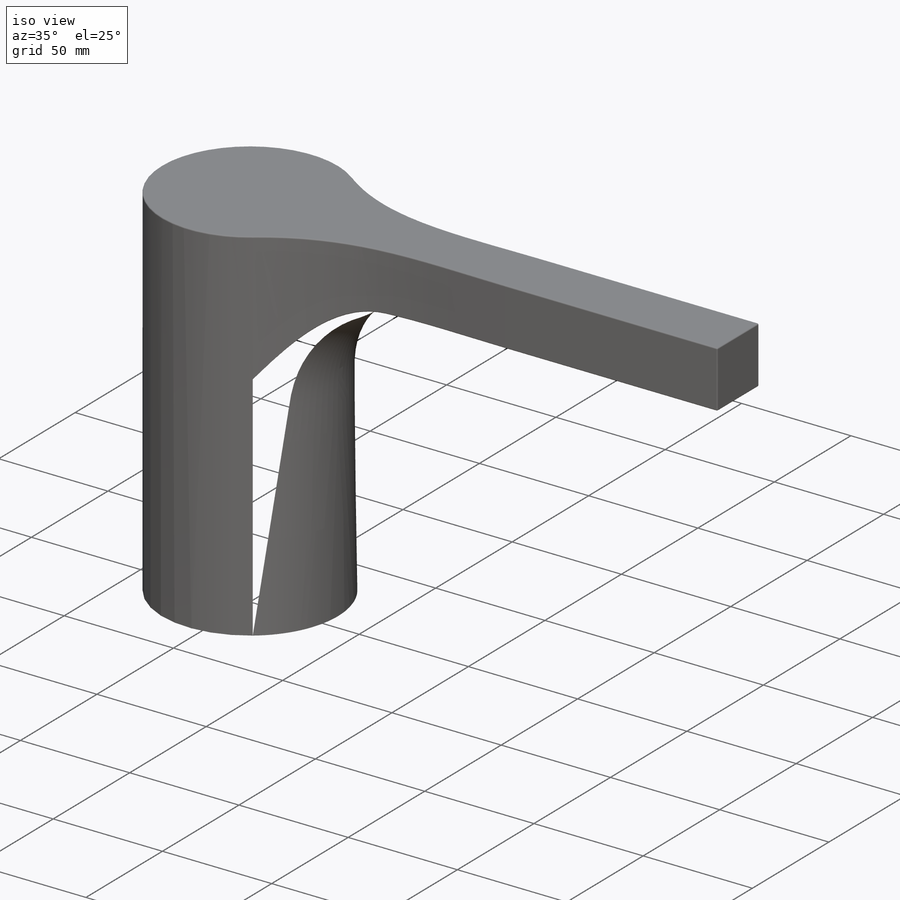
[diagram: iso view]
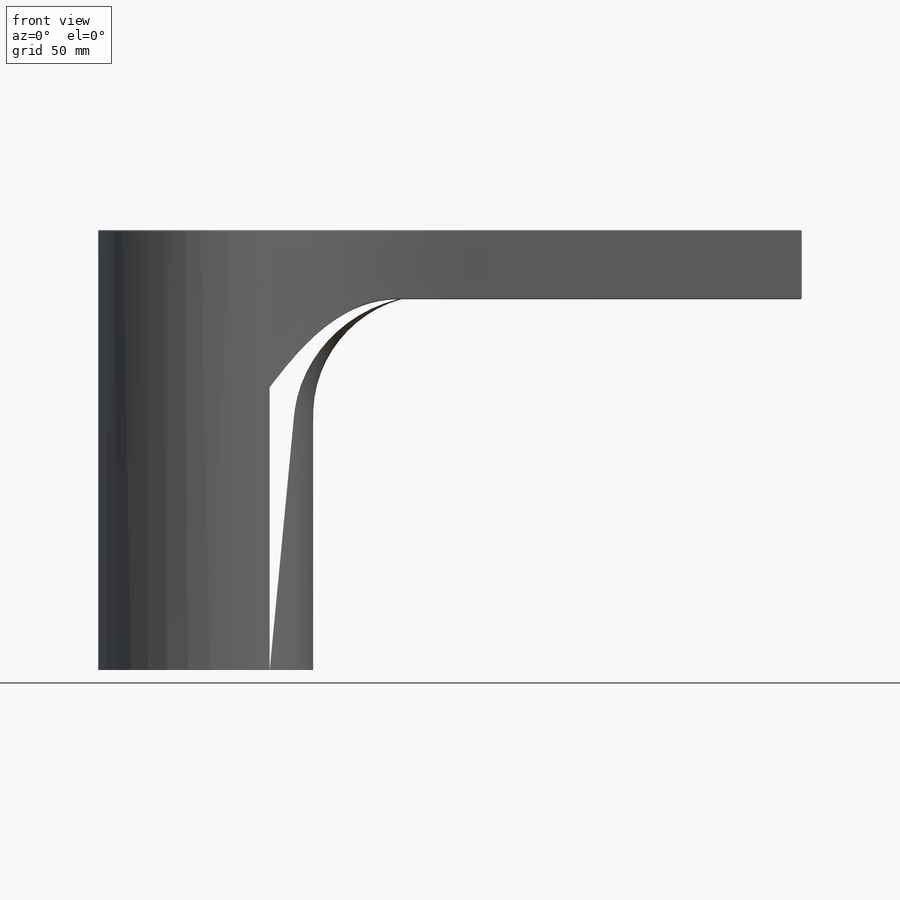
[diagram: front view]
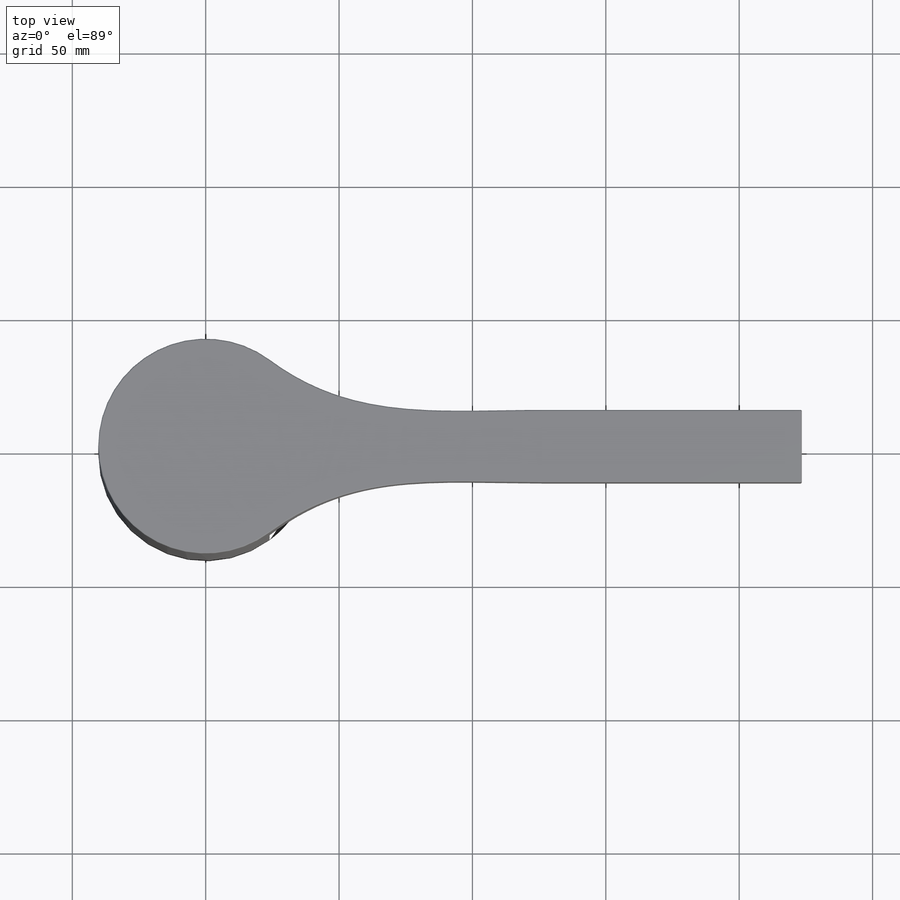
[diagram: top view]
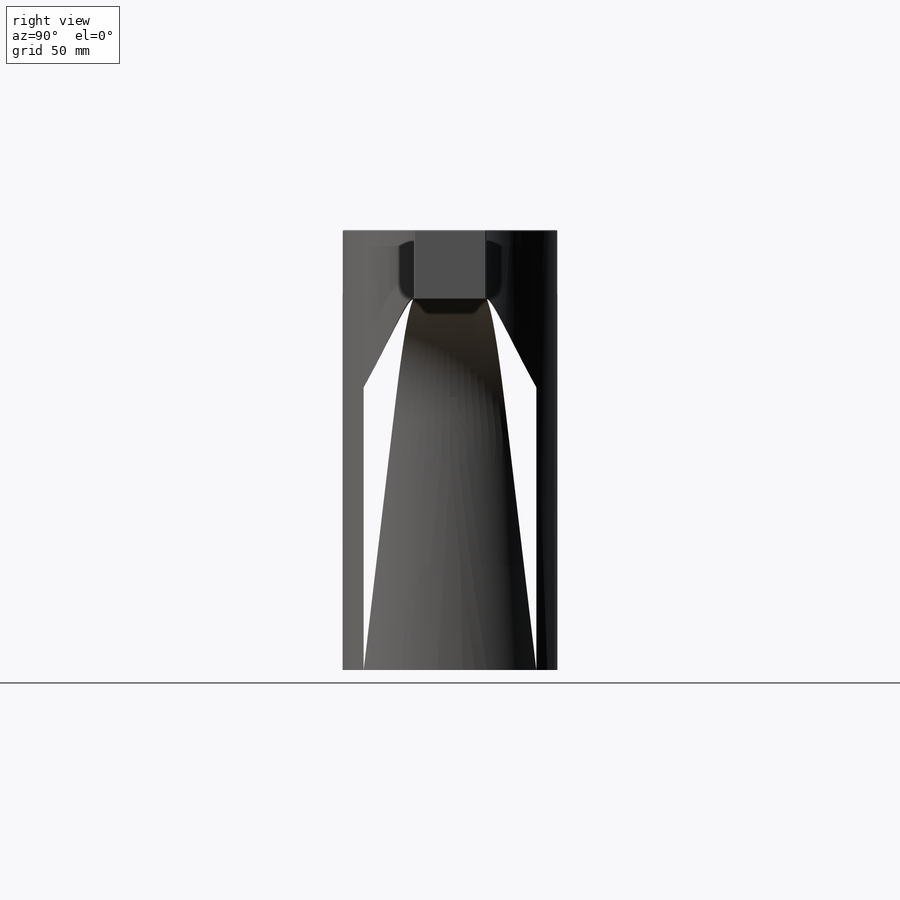
[diagram: right view]
SOLIDWORKS PART (.sldprt)
format: sldprt  version: not decoded by parser v0  size: 254,976 bytes
history: native  units: mm
features: sketch x3, extrude x2, fillet x2, material x1, cut_extrude x1 (+11 scaffold rows collapsed)
feature tree (20):
  scaffold x11  (default folders/planes/origin — collapsed)
  material  "Material <nicht festgelegt>"
  sketch  "Skizze1"  dims[D1=~40.284681mm]
  extrude  "Aufsatz-Linear austragen1"  Depth=165mm
  sketch  "Skizze2"  dims[D1=40.285mm]
  cut_extrude  "Schnitt-Linear austragen1"  Depth=139mm
  fillet  "Verrundung1"  Radius=33mm
  extrude  "Verrundung4"  Depth=0.5mm
  fillet  "Fläche löschen2"  [1 undecoded]
  sketch  "3D-Skizze1"
decode coverage: 6 of 8 modeling features carry decoded parameters
note: ~ marks probable driven/reference dimensions
note: 1 parameter value undecoded
note: suppression state not decoded; provenance and decode notes live in map.json
